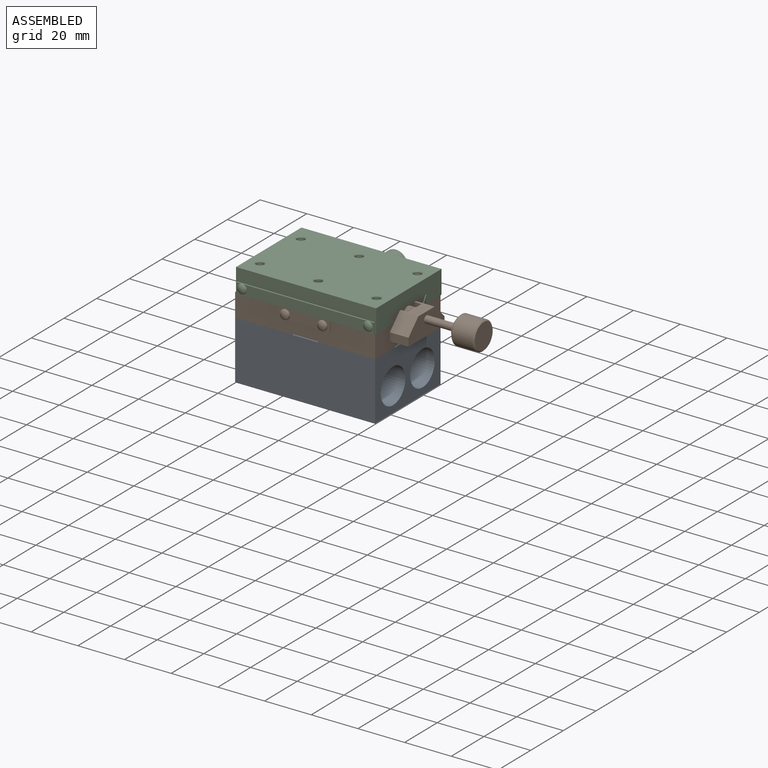
[diagram: assembled view]
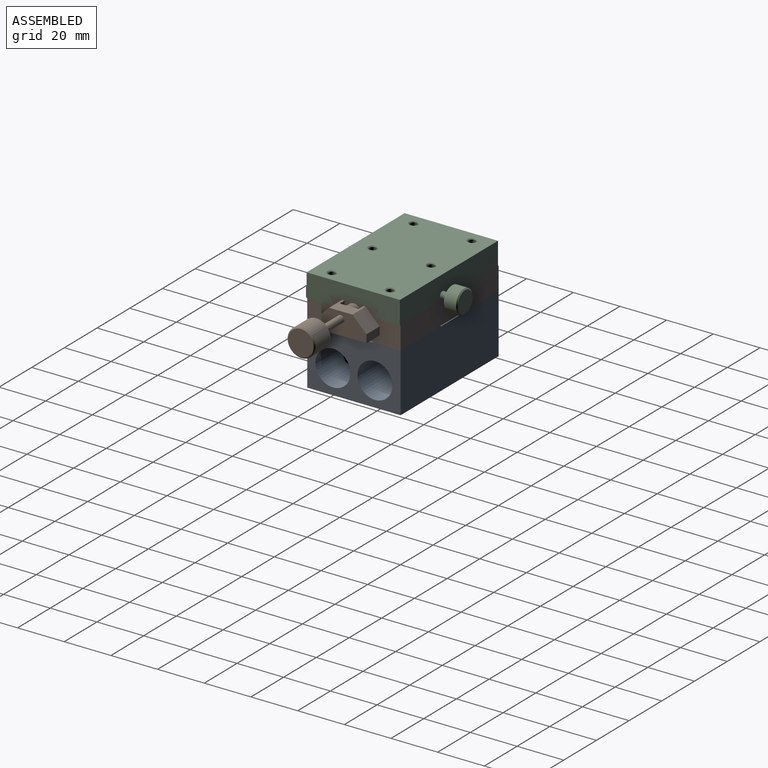
[diagram: assembled view, second angle]
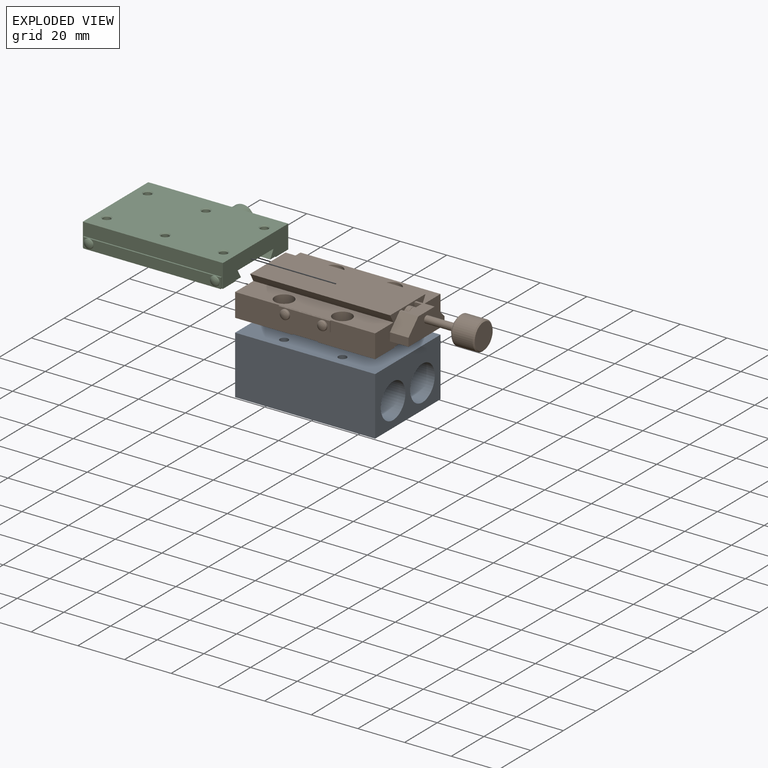
[diagram: exploded view]
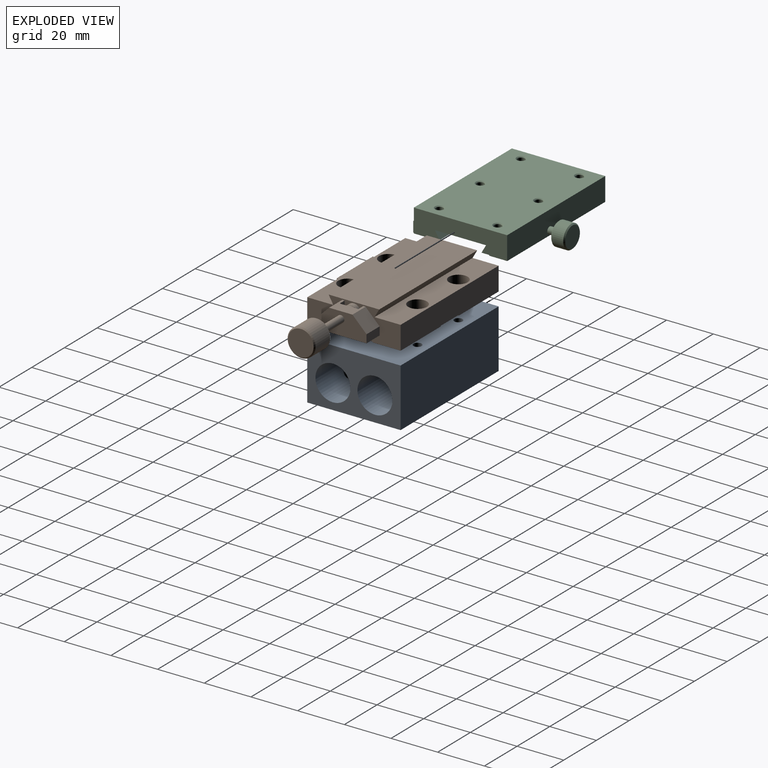
[diagram: exploded view, second angle]
ASSEMBLY  parts=3 mates=2
PART A: 12 faces, bbox 60x40x25 mm
  f0: plane 60x25mm, normal (0,-1,0), area 1500mm2, adj f1,f3,f4,f5
  f1: plane 40x25mm, normal (-1,0,0), area 646.6mm2, adj f0,f2,f4,f5,f6,f7
  f2: plane 60x25mm, normal (0,1,0), area 1500mm2, adj f1,f3,f4,f5
  f3: plane 40x25mm, normal (1,0,0), area 646.6mm2, adj f0,f2,f4,f5,f6,f7
  f4: plane 60x40mm, normal (0,0,-1), area 2361.5mm2, adj f0,f1,f2,f3,f8,f9,f10,f11
  f5: plane 60x40mm, normal (0,0,1), area 2361.5mm2, adj f0,f1,f2,f3,f8,f9,f10,f11
  f6: cylinder r=7.5mm len=60mm, axis (-1,0,0), area 2748.1mm2, adj f1,f3,f10,f11
  f7: cylinder r=7.5mm len=60mm, axis (-1,0,0), area 2748.3mm2, adj f1,f3,f8,f9
  f8: cylinder r=1.75mm len=25mm, axis (0,0,1), area 192.2mm2, adj f4,f5,f7
  f9: cylinder r=1.75mm len=25mm, axis (0,0,1), area 192.2mm2, adj f4,f5,f7
  f10: cylinder r=1.75mm len=25mm, axis (0,0,1), area 192.1mm2, adj f4,f5,f6
  f11: cylinder r=1.75mm len=25mm, axis (0,0,1), area 192.1mm2, adj f4,f5,f6
PART B: 76 faces, bbox 92.5x42.1x16 mm
  f0: plane 24.5x0.3mm, normal (0,-1,0), area 7.3mm2, adj f3,f12,f27,f29
  f1: plane 24.5x12mm, normal (0,0,-1), area 274.4mm2, adj f2,f5,f10,f28,f38
  f2: plane 24.5x0.3mm, normal (0,-1,0), area 7.3mm2, adj f1,f5,f28,f29
  f3: plane 40x13.5mm, normal (1,0,0), area 338.7mm2, adj f0,f4,f6,f7,f8,f9,f10,f11
  f4: plane 60x10mm, normal (0,-1,0), area 497.7mm2, adj f3,f5,f11,f25,f26,f29,f31,f32
  f5: plane 40x13.5mm, normal (-1,0,0), area 464mm2, adj f1,f2,f4,f6,f7,f8,f9,f10
  f6: plane 60x3.5mm, normal (0,-0.87,-0.5), area 242.5mm2, adj f3,f5,f7,f11
  f7: plane 60x21.67mm, normal (0,0,1), area 1300.2mm2, adj f3,f5,f6,f8
  f8: plane 60x3.5mm, normal (0,0.87,-0.5), area 242.5mm2, adj f3,f5,f7,f9
  f9: plane 60x11.19mm, normal (0,0,1), area 570.6mm2, adj f3,f5,f8,f10,f17,f18
  f10: plane 60x10mm, normal (0,1,0), area 596.7mm2, adj f1,f3,f5,f9,f12,f27,f28,f29
  f11: plane 60x11.19mm, normal (0,0,1), area 570.6mm2, adj f3,f4,f5,f6,f24,f37
  f12: plane 24.5x12mm, normal (0,0,-1), area 274.4mm2, adj f0,f3,f10,f13,f27
  f13: cone r=2.07mm half-angle=45deg, axis (0,0,-1), area 8.8mm2, adj f12,f14
  f14: cylinder r=2.07mm len=4.63mm, axis (0,0,1), area 60.2mm2, adj f13,f15
  f15: cone r=2.5mm half-angle=45deg, axis (0,0,1), area 8.8mm2, adj f14,f16
  f16: plane 8x8mm, normal (0,0,1), area 30.6mm2, adj f15,f17
  f17: cylinder r=4mm len=8mm, axis (0,0,1), area 113.1mm2, adj f9,f16
  f18: cylinder r=4mm len=8mm, axis (0,0,1), area 113.1mm2, adj f9,f19
  f19: plane 8x8mm, normal (0,0,1), area 30.6mm2, adj f18,f40
  f20: cone r=2.07mm half-angle=45deg, axis (0,0,-1), area 8.8mm2, adj f21,f32
  f21: cylinder r=2.07mm len=4.63mm, axis (0,0,1), area 60.2mm2, adj f20,f22
  f22: cone r=2.5mm half-angle=45deg, axis (0,0,1), area 8.8mm2, adj f21,f23
  f23: plane 8x8mm, normal (0,0,1), area 30.6mm2, adj f22,f24
  f24: cylinder r=4mm len=8mm, axis (0,0,1), area 113.1mm2, adj f11,f23
  f25: plane 12x0.3mm, normal (-1,0,0), area 3.6mm2, adj f4,f29,f32,f75
  f26: plane 12x0.3mm, normal (1,0,0), area 3.6mm2, adj f4,f29,f30,f31
  f27: plane 12x0.3mm, normal (-1,0,0), area 3.6mm2, adj f0,f10,f12,f29
  f28: plane 12x0.3mm, normal (1,0,0), area 3.6mm2, adj f1,f2,f10,f29
  f29: plane 60x40mm, normal (0,0,-1), area 1224mm2, adj f0,f2,f3,f4,f5,f10,f25,f26
  f30: plane 24.5x0.3mm, normal (0,1,0), area 7.3mm2, adj f5,f26,f29,f31
  f31: plane 24.5x12mm, normal (0,0,-1), area 274.4mm2, adj f4,f5,f26,f30,f33
  f32: plane 24.5x12mm, normal (0,0,-1), area 274.4mm2, adj f3,f4,f20,f25,f75
  f33: cone r=2.07mm half-angle=45deg, axis (0,0,-1), area 8.8mm2, adj f31,f34
  f34: cylinder r=2.07mm len=4.63mm, axis (0,0,1), area 60.2mm2, adj f33,f35
  f35: cone r=2.5mm half-angle=45deg, axis (0,0,1), area 8.8mm2, adj f34,f36
  f36: plane 8x8mm, normal (0,0,1), area 30.6mm2, adj f35,f37
  f37: cylinder r=4mm len=8mm, axis (0,0,1), area 113.1mm2, adj f11,f36
  f38: cone r=2.07mm half-angle=45deg, axis (0,0,-1), area 8.8mm2, adj f1,f39
  f39: cylinder r=2.07mm len=4.63mm, axis (0,0,1), area 60.2mm2, adj f38,f40
  f40: cone r=2.5mm half-angle=45deg, axis (0,0,1), area 8.8mm2, adj f19,f39
  f41: plane 22x0.6mm, normal (0,0,1), area 13.2mm2, adj f4,f42,f44,f45
  f42: plane 4.5x0.6mm, normal (-1,0,0), area 2.7mm2, adj f4,f41,f43,f45
  f43: plane 22x0.6mm, normal (0,0,-1), area 13.2mm2, adj f4,f42,f44,f45
  f44: plane 4.5x0.6mm, normal (1,0,0), area 2.7mm2, adj f4,f41,f43,f45
  f45: plane 22x4.5mm, normal (0,-1,0), area 73.9mm2, adj f41,f42,f43,f44,f48,f51
  f46: sphere r=3.2mm, area 9.8mm2, adj f47
  f47: torus R=1.36mm, axis (0,1,0), area 7.7mm2, adj f46,f48
  f48: cylinder r=2mm len=4mm, axis (0,-1,0), area 5.8mm2, adj f45,f47
  f49: sphere r=3.2mm, area 9.8mm2, adj f50
  f50: torus R=1.36mm, axis (0,1,0), area 7.7mm2, adj f49,f51
  f51: cylinder r=2mm len=4mm, axis (0,-1,0), area 5.8mm2, adj f45,f50
  f52: plane 8x6mm, normal (0,-0.71,0.71), area 67.9mm2, adj f3,f53,f57,f58
  f53: plane 8x3.5mm, normal (0,-1,0), area 28mm2, adj f3,f52,f54,f58
  f54: plane 22x8mm, normal (0,0,-1), area 152mm2, adj f3,f53,f55,f58,f59,f60,f61
  f55: plane 8x3.5mm, normal (0,1,0), area 28mm2, adj f3,f54,f56,f58
  f56: plane 8x6mm, normal (0,0.71,0.71), area 67.9mm2, adj f3,f55,f57,f58
  f57: plane 10x8mm, normal (0,0,1), area 56mm2, adj f3,f52,f56,f58,f59,f60,f61
  f58: plane 22x9.5mm, normal (1,0,0), area 165.9mm2, adj f52,f53,f54,f55,f56,f57,f66
  f59: plane 9.5x8mm, normal (-1,0,0), area 47.7mm2, adj f54,f57,f60,f61,f65
  f60: plane 9.5x3mm, normal (0,-1,0), area 28.5mm2, adj f3,f54,f57,f59
  f61: plane 9.5x3mm, normal (0,1,0), area 28.5mm2, adj f3,f54,f57,f59
  f62: cylinder r=3mm len=6mm, axis (-1,0,0), area 37.7mm2, adj f3,f63
  f63: plane 6x6mm, normal (1,0,0), area 1.9mm2, adj f62,f64
  f64: cone r=2.9mm half-angle=45deg, axis (1,0,0), area 2.6mm2, adj f63,f65
  f65: cylinder r=3mm len=6mm, axis (-1,0,0), area 17mm2, adj f59,f64
  f66: cylinder r=1.5mm len=13mm, axis (-1,0,0), area 122.5mm2, adj f58,f67
  f67: plane 7x7mm, normal (-1,0,0), area 31.4mm2, adj f66,f68
  f68: cylinder r=3.5mm len=7mm, axis (-1,0,0), area 11mm2, adj f67,f69
  f69: torus R=4.5mm, axis (1,0,0), area 38.1mm2, adj f68,f70
  f70: plane 11x11mm, normal (-1,0,0), area 31.4mm2, adj f69,f71
  f71: cone r=5.5mm half-angle=45deg, axis (1,0,0), area 25.5mm2, adj f70,f72
  f72: cylinder r=6mm len=12mm, axis (-1,0,0), area 339.3mm2, adj f71,f73
  f73: cone r=6mm half-angle=45deg, axis (-1,0,0), area 25.5mm2, adj f72,f74
  f74: plane 11x11mm, normal (1,0,0), area 95mm2, adj f73
  f75: plane 24.5x0.3mm, normal (0,1,0), area 7.3mm2, adj f3,f25,f29,f32
PART C: 46 faces, bbox 60x51.4x13 mm
  f0: plane 59x4.5mm, normal (0,-1,0), area 240.4mm2, adj f2,f5,f41,f42,f44,f45
  f1: sphere r=3.19mm, area 9.9mm2, adj f45
  f2: plane 4.5x0.6mm, normal (1,0,0), area 2.7mm2, adj f0,f3,f5,f41
  f3: plane 60x10mm, normal (0,-1,0), area 334.5mm2, adj f2,f4,f5,f15,f16,f41,f42
  f4: plane 60x40mm, normal (0,0,1), area 2324.6mm2, adj f3,f14,f15,f16,f17,f20,f23,f26
  f5: plane 60x8.3mm, normal (0,0,-1), area 497.4mm2, adj f0,f2,f3,f6,f15,f16,f42
  f6: plane 60x0.3mm, normal (0,1,0), area 18mm2, adj f5,f7,f15,f16
  f7: plane 60x3.31mm, normal (0,0,-1), area 198.8mm2, adj f6,f8,f15,f16
  f8: plane 60x3.4mm, normal (0,0.87,0.5), area 235.6mm2, adj f7,f9,f15,f16
  f9: plane 60x21.9mm, normal (0,0,-1), area 1314.1mm2, adj f8,f10,f15,f16
  f10: plane 60x3.4mm, normal (0,-0.87,0.5), area 235.6mm2, adj f9,f11,f15,f16
  f11: plane 60x3.31mm, normal (0,0,-1), area 198.8mm2, adj f10,f12,f15,f16
  f12: plane 60x0.3mm, normal (0,-1,0), area 18mm2, adj f11,f13,f15,f16
  f13: plane 60x7.7mm, normal (0,0,-1), area 462mm2, adj f12,f14,f15,f16
  f14: plane 60x10mm, normal (0,1,0), area 592.9mm2, adj f4,f13,f15,f16,f35
  f15: plane 40x10mm, normal (-1,0,0), area 324.8mm2, adj f3,f4,f5,f6,f7,f8,f9,f10
  f16: plane 40x10mm, normal (1,0,0), area 324.8mm2, adj f3,f4,f5,f6,f7,f8,f9,f10
  f17: cone r=2mm half-angle=45deg, axis (0,0,1), area 6.1mm2, adj f4,f18
  f18: cylinder r=1.62mm len=5.62mm, axis (0,0,1), area 57.3mm2, adj f17,f19
  f19: plane 3.24x3.24mm, normal (0,0,1), area 8.3mm2, adj f18
  f20: cone r=2mm half-angle=45deg, axis (0,0,1), area 6.1mm2, adj f4,f21
  f21: cylinder r=1.62mm len=5.62mm, axis (0,0,1), area 57.3mm2, adj f20,f22
  f22: plane 3.24x3.24mm, normal (0,0,1), area 8.3mm2, adj f21
  f23: cone r=2mm half-angle=45deg, axis (0,0,1), area 6.1mm2, adj f4,f24
  f24: cylinder r=1.62mm len=5.62mm, axis (0,0,1), area 57.3mm2, adj f23,f25
  f25: plane 3.24x3.24mm, normal (0,0,1), area 8.3mm2, adj f24
  f26: cone r=2mm half-angle=45deg, axis (0,0,1), area 6.1mm2, adj f4,f27
  f27: cylinder r=1.62mm len=5.62mm, axis (0,0,1), area 57.3mm2, adj f26,f28
  f28: plane 3.24x3.24mm, normal (0,0,1), area 8.3mm2, adj f27
  f29: cone r=2mm half-angle=45deg, axis (0,0,1), area 6.1mm2, adj f4,f30
  f30: cylinder r=1.62mm len=5.62mm, axis (0,0,1), area 57.3mm2, adj f29,f31
  f31: plane 3.24x3.24mm, normal (0,0,1), area 8.3mm2, adj f30
  f32: cone r=2mm half-angle=45deg, axis (0,0,1), area 6.1mm2, adj f4,f33
  f33: cylinder r=1.62mm len=5.62mm, axis (0,0,1), area 57.3mm2, adj f32,f34
  f34: plane 3.24x3.24mm, normal (0,0,1), area 8.3mm2, adj f33
  f35: cylinder r=1.5mm len=3.8mm, axis (0,-1,0), area 35.8mm2, adj f14,f36
  f36: plane 9x9mm, normal (0,-1,0), area 56.5mm2, adj f35,f37
  f37: cone r=4.5mm half-angle=45deg, axis (0,1,0), area 21.1mm2, adj f36,f38
  f38: cylinder r=5mm len=10mm, axis (0,-1,0), area 157.1mm2, adj f37,f39
  f39: cone r=5mm half-angle=45deg, axis (0,-1,0), area 21.1mm2, adj f38,f40
  f40: plane 9x9mm, normal (0,1,0), area 63.6mm2, adj f39
  f41: plane 59x0.6mm, normal (0,0,1), area 35.4mm2, adj f0,f2,f3,f42
  f42: plane 4.5x0.6mm, normal (-1,0,0), area 2.7mm2, adj f0,f3,f5,f41
  f43: sphere r=3.19mm, area 9.9mm2, adj f44
  f44: torus R=1.36mm, axis (0,1,0), area 7.2mm2, adj f0,f43
  f45: torus R=1.36mm, axis (0,1,0), area 7.2mm2, adj f0,f1
PLACE A t=(0,-0.91,-4.42)mm
PLACE B t=(0,-0.91,-4.42)mm
PLACE C t=(0.41,-0.91,5.38)mm
MATE fastened B.f33 <-> A.f11  axis (0,0,-1) through (-12.5,-15.91,-4.42)mm
MATE slider B.f5 <-> C.f15  axis (-1,0,0) through (-30,-0.91,9.08)mm
